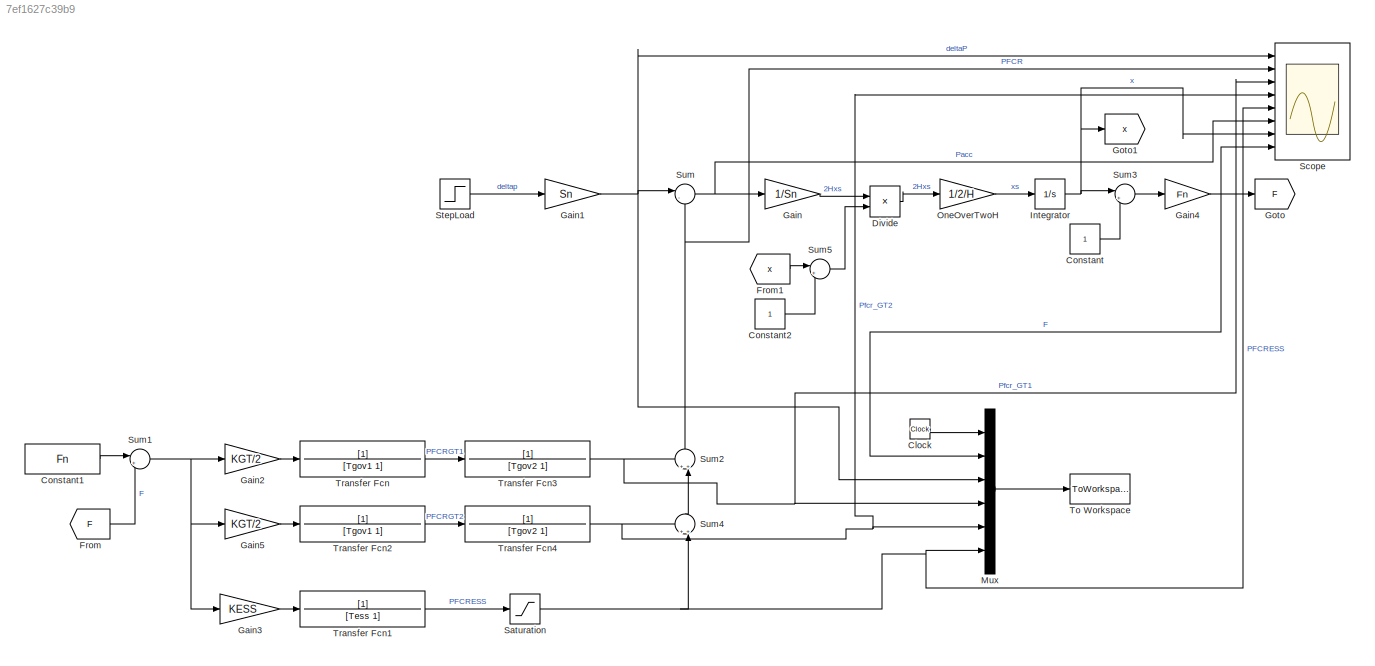
MODEL slx_7ef1627c39b9
KIND model
CONFIG AbsTol = auto
CONFIG EnableMultiTasking = off
CONFIG FixedStep = auto
CONFIG MaxStep = 0.01
CONFIG MinStep = auto
CONFIG RelTol = 1e-3
CONFIG SampleTimeConstraint = Unconstrained
CONFIG Solver = VariableStepAuto
CONFIG SolverName = VariableStepAuto
CONFIG StartTime = 0.0
CONFIG StopTime = 25
BLOCK [Clock] Clock
BLOCK [Constant] Constant
BLOCK [Constant] Constant1
  Value = Fn
BLOCK [Constant] Constant2
BLOCK [Product] Divide
  InputSameDT = off
  Inputs = */
  OutDataTypeStr = Inherit: Inherit via internal rule
  Ports = [2, 1]
  RndMeth = Floor
  SaturateOnIntegerOverflow = off
BLOCK [From] From
  GotoTag = F
BLOCK [From] From1
  GotoTag = x
BLOCK [Gain] Gain
  Gain = 1/Sn
  OutDataTypeStr = Inherit: Inherit via internal rule
  ParamDataTypeStr = Inherit: Inherit via internal rule
  SaturateOnIntegerOverflow = off
BLOCK [Gain] Gain1
  Gain = Sn
  OutDataTypeStr = Inherit: Inherit via internal rule
  ParamDataTypeStr = Inherit: Inherit via internal rule
  SaturateOnIntegerOverflow = off
BLOCK [Gain] Gain2
  Gain = KGT/2
  OutDataTypeStr = Inherit: Inherit via internal rule
  ParamDataTypeStr = Inherit: Inherit via internal rule
  SaturateOnIntegerOverflow = off
BLOCK [Gain] Gain3
  Gain = KESS
  OutDataTypeStr = Inherit: Inherit via internal rule
  ParamDataTypeStr = Inherit: Inherit via internal rule
  SaturateOnIntegerOverflow = off
BLOCK [Gain] Gain4
  Gain = Fn
  OutDataTypeStr = Inherit: Inherit via internal rule
  ParamDataTypeStr = Inherit: Inherit via internal rule
  SaturateOnIntegerOverflow = off
BLOCK [Gain] Gain5
  Gain = KGT/2
  OutDataTypeStr = Inherit: Inherit via internal rule
  ParamDataTypeStr = Inherit: Inherit via internal rule
  SaturateOnIntegerOverflow = off
BLOCK [Goto] Goto
  GotoTag = F
BLOCK [Goto] Goto1
  GotoTag = x
BLOCK [Integrator] Integrator
  Ports = [1, 1]
BLOCK [Mux] Mux
  DisplayOption = bar
  Inputs = 6
  Ports = [6, 1]
BLOCK [Gain] OneOverTwoH
  Gain = 1/2/H
  OutDataTypeStr = Inherit: Inherit via internal rule
  ParamDataTypeStr = Inherit: Inherit via internal rule
  SaturateOnIntegerOverflow = off
BLOCK [Saturate] Saturation
  InputPortMap = u0
  LowerLimit = -Pessmax
  Ports = [1, 1]
  UpperLimit = Pessmax
BLOCK [Scope] Scope
  Floating = off
  NumInputPorts = 8
  Ports = [8]
  ScopeSpecificationString = Simulink.scopes.TimeScopeBlockCfg('CurrentConfiguration', extmgr.ConfigurationSet(extmgr.Configuration('Core','General UI',true),extmgr.Configuration('Core','Source UI',true),extmgr.Configuration('Sources','WiredSimulink',true),extmgr.Configuration('Visuals','Time Domain',true,'SerializedDisplays',{struct('MinYLimReal','-0.75','MaxYLimReal','6.75','YLabelReal','','MinYLimMag','0.00000','MaxYLimMag...<+6255ch>
BLOCK [Step] StepLoad
  After = StepMW/Sn
  SampleTime = 0
BLOCK [Sum] Sum
  IconShape = round
  InputSameDT = off
  Inputs = |-+
  OutDataTypeStr = Inherit: Inherit via internal rule
  Ports = [2, 1]
  SaturateOnIntegerOverflow = off
BLOCK [Sum] Sum1
  IconShape = round
  InputSameDT = off
  Inputs = |+-
  OutDataTypeStr = Inherit: Inherit via internal rule
  Ports = [2, 1]
  SaturateOnIntegerOverflow = off
BLOCK [Sum] Sum2
  IconShape = round
  InputSameDT = off
  Inputs = ++|
  OutDataTypeStr = Inherit: Inherit via internal rule
  Ports = [2, 1]
  SaturateOnIntegerOverflow = off
BLOCK [Sum] Sum3
  IconShape = round
  InputSameDT = off
  Inputs = |++
  OutDataTypeStr = Inherit: Inherit via internal rule
  Ports = [2, 1]
  SaturateOnIntegerOverflow = off
BLOCK [Sum] Sum4
  IconShape = round
  InputSameDT = off
  Inputs = ++|
  OutDataTypeStr = Inherit: Inherit via internal rule
  Ports = [2, 1]
  SaturateOnIntegerOverflow = off
BLOCK [Sum] Sum5
  IconShape = round
  InputSameDT = off
  Inputs = |++
  OutDataTypeStr = Inherit: Inherit via internal rule
  Ports = [2, 1]
  SaturateOnIntegerOverflow = off
BLOCK [ToWorkspace] To Workspace
  FixptAsFi = on
  MaxDataPoints = inf
  Ports = [1]
  SampleTime = -1
  Save2DSignal = 3-D array (concatenate along third dimension)
  VariableName = raw_data
BLOCK [TransferFcn] Transfer Fcn
  Denominator = [Tgov1 1]
BLOCK [TransferFcn] Transfer Fcn1
  Denominator = [Tess 1]
BLOCK [TransferFcn] Transfer Fcn2
  Denominator = [Tgov1 1]
BLOCK [TransferFcn] Transfer Fcn3
  Denominator = [Tgov2 1]
BLOCK [TransferFcn] Transfer Fcn4
  Denominator = [Tgov2 1]
LINE Clock:1 -> Mux:1
LINE Constant1:1 -> Sum1:1
LINE Constant2:1 -> Sum5:2
LINE Constant:1 -> Sum3:2
LINE Divide:1 -> OneOverTwoH:1
LINE From1:1 -> Sum5:1
LINE From:1 -> Sum1:2
NET Gain1:1 -> Mux:3, Scope:1, Sum:1
LINE Gain2:1 -> Transfer Fcn:1
LINE Gain3:1 -> Transfer Fcn1:1
NET Gain4:1 -> Goto:1, Mux:2, Scope:8
LINE Gain5:1 -> Transfer Fcn2:1
LINE Gain:1 -> Divide:1
NET Integrator:1 -> Goto1:1, Scope:7, Sum3:1
LINE Mux:1 -> To Workspace:1
LINE OneOverTwoH:1 -> Integrator:1
NET Saturation:1 -> Mux:6, Scope:5, Sum4:2
LINE StepLoad:1 -> Gain1:1
NET Sum1:1 -> Gain2:1, Gain3:1, Gain5:1
NET Sum2:1 -> Scope:2, Sum:2
LINE Sum3:1 -> Gain4:1
LINE Sum4:1 -> Sum2:2
LINE Sum5:1 -> Divide:2
NET Sum:1 -> Gain:1, Scope:6
LINE Transfer Fcn1:1 -> Saturation:1
LINE Transfer Fcn2:1 -> Transfer Fcn4:1
NET Transfer Fcn3:1 -> Mux:4, Scope:3, Sum2:1
NET Transfer Fcn4:1 -> Mux:5, Scope:4, Sum4:1
LINE Transfer Fcn:1 -> Transfer Fcn3:1
note: NET lines group one-source signal fan-out (src -> all destinations, sorted); 1:1 wires keep LINE
